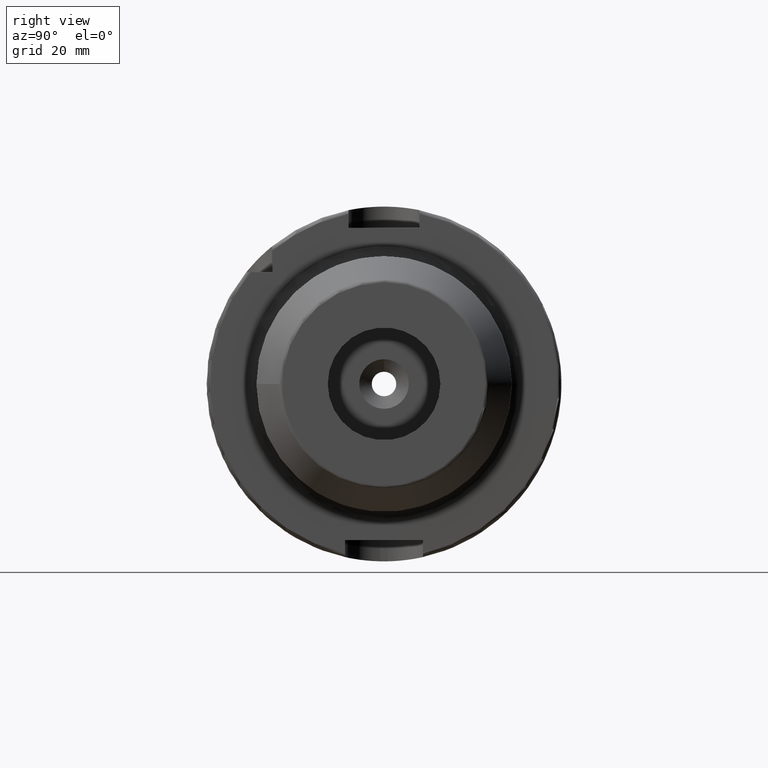
[diagram: clean part render]
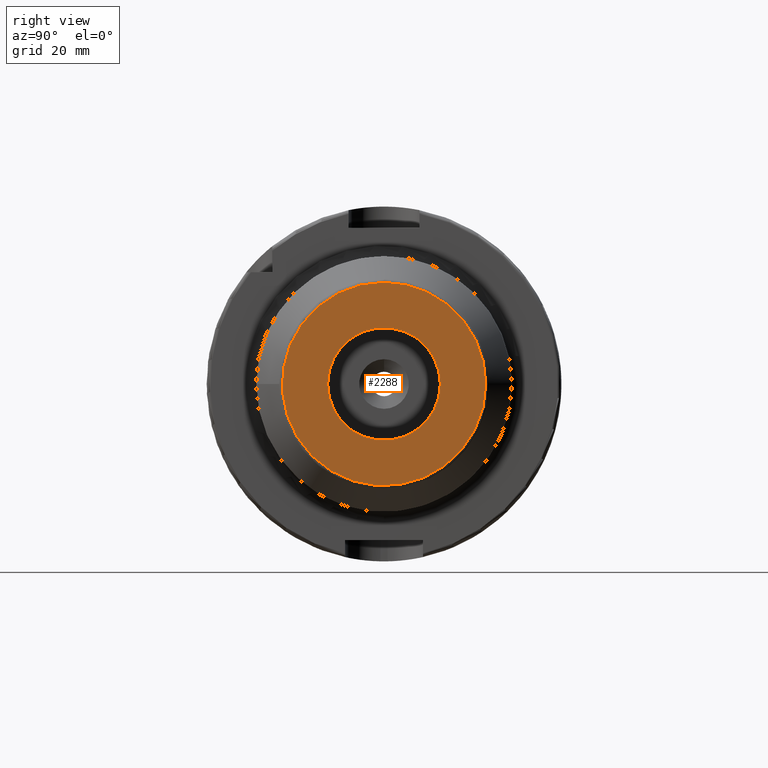
[diagram: same view with one face highlighted and labeled with its STEP entity id]
A machine part, right view. The second image highlights one B-rep face of the part: STEP entity #2288.
In plain terms, the highlighted planar face has unit normal (1, 0, 0).
Its self-contained STEP definition (entity closure, byte-faithful):
#93=FACE_BOUND('',#551,.T.);
#104=PLANE('',#2476);
#426=FACE_OUTER_BOUND('',#550,.T.);
#550=EDGE_LOOP('',(#1591,#1592));
#551=EDGE_LOOP('',(#1593,#1594));
#714=CIRCLE('',#2473,28.6726497308104);
#716=CIRCLE('',#2475,28.6726497308104);
#717=CIRCLE('',#2477,15.875);
#718=CIRCLE('',#2478,15.875);
#899=VERTEX_POINT('',#3587);
#900=VERTEX_POINT('',#3588);
#901=VERTEX_POINT('',#3593);
#902=VERTEX_POINT('',#3594);
#1168=EDGE_CURVE('',#899,#900,#714,.T.);
#1170=EDGE_CURVE('',#900,#899,#716,.T.);
#1171=EDGE_CURVE('',#901,#902,#717,.T.);
#1172=EDGE_CURVE('',#902,#901,#718,.T.);
#1591=ORIENTED_EDGE('',*,*,#1168,.F.);
#1592=ORIENTED_EDGE('',*,*,#1170,.F.);
#1593=ORIENTED_EDGE('',*,*,#1171,.F.);
#1594=ORIENTED_EDGE('',*,*,#1172,.F.);
#2288=ADVANCED_FACE('',(#426,#93),#104,.T.);
#2473=AXIS2_PLACEMENT_3D('',#3589,#2854,#2855);
#2475=AXIS2_PLACEMENT_3D('',#3591,#2858,#2859);
#2476=AXIS2_PLACEMENT_3D('',#3592,#2860,#2861);
#2477=AXIS2_PLACEMENT_3D('',#3595,#2862,#2863);
#2478=AXIS2_PLACEMENT_3D('',#3596,#2864,#2865);
#2854=DIRECTION('center_axis',(-1.,0.,0.));
#2855=DIRECTION('ref_axis',(0.,-1.,1.83697019872103E-16));
#2858=DIRECTION('center_axis',(-1.,0.,0.));
#2859=DIRECTION('ref_axis',(0.,-1.,1.83697019872103E-16));
#2860=DIRECTION('center_axis',(1.,0.,0.));
#2861=DIRECTION('ref_axis',(0.,0.,-1.));
#2862=DIRECTION('center_axis',(1.,0.,0.));
#2863=DIRECTION('ref_axis',(0.,0.,-1.));
#2864=DIRECTION('center_axis',(1.,0.,0.));
#2865=DIRECTION('ref_axis',(0.,0.,-1.));
#3587=CARTESIAN_POINT('',(100.,28.6726497308104,-8.77846717897754E-15));
#3588=CARTESIAN_POINT('',(100.,-3.51138687159101E-15,28.6726497308104));
#3589=CARTESIAN_POINT('Origin',(100.,0.,0.));
#3591=CARTESIAN_POINT('Origin',(100.,0.,0.));
#3592=CARTESIAN_POINT('Origin',(100.,15.875,0.));
#3593=CARTESIAN_POINT('',(100.,15.875,0.));
#3594=CARTESIAN_POINT('',(100.,-15.875,-1.94412679364642E-15));
#3595=CARTESIAN_POINT('Origin',(100.,0.,0.));
#3596=CARTESIAN_POINT('Origin',(100.,0.,0.));